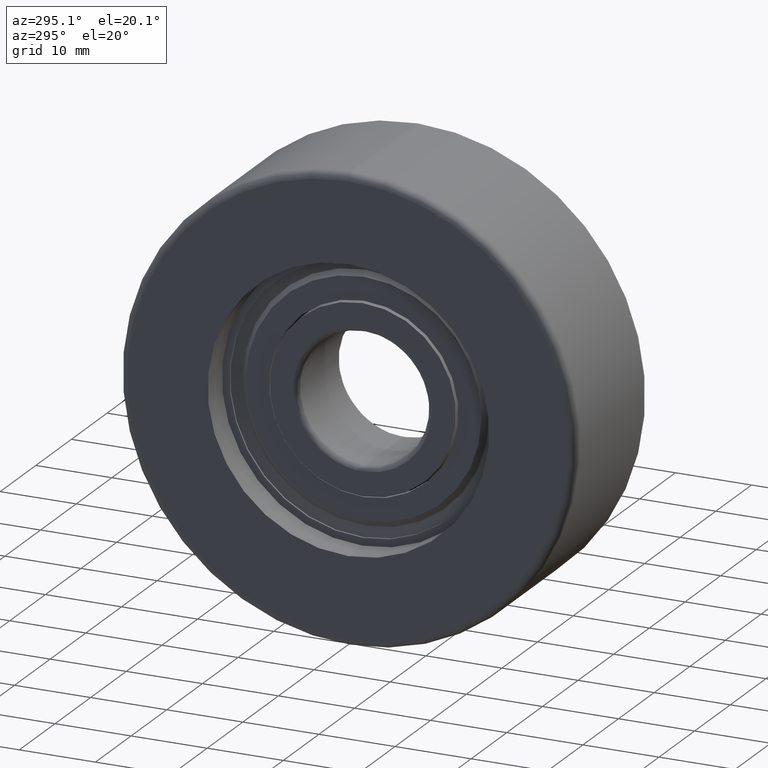
[diagram: clean part render]
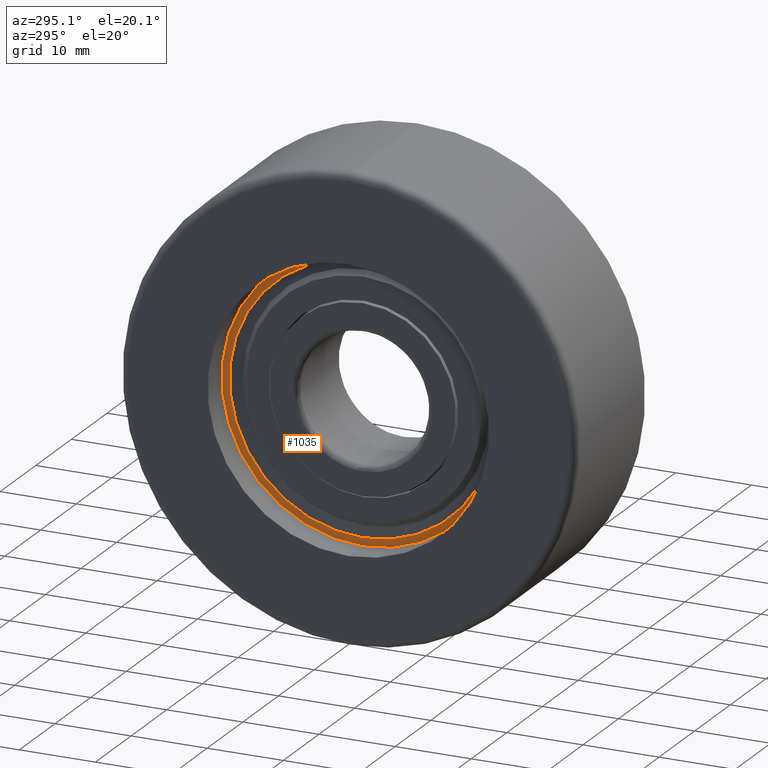
[diagram: same view with one face highlighted and labeled with its STEP entity id]
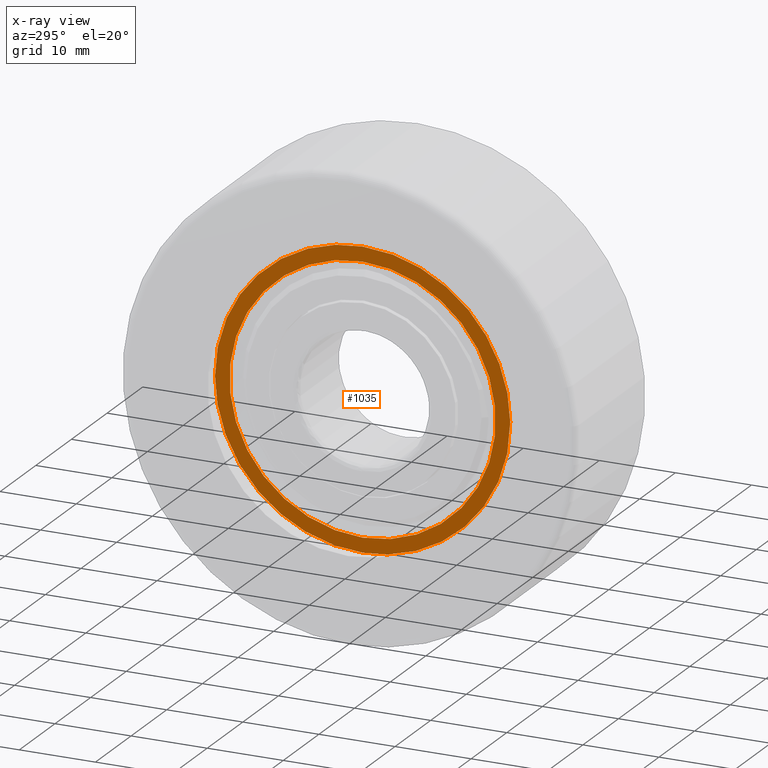
[diagram: x-ray of the same camera — body ghosted, the highlighted face saturated]
A machine part, auxiliary view. The second image highlights one B-rep face of the part: STEP entity #1035.
The next image is the same camera in x-ray: the body ghosted, the highlighted face saturated — about 0% of this face is hidden behind the body in this view.
In plain terms, the highlighted planar face has unit normal (-1, 0, 0).
Its self-contained STEP definition (entity closure, byte-faithful):
#42 = EDGE_CURVE ( 'NONE', #2623, #1947, #3529, .T. ) ;
#173 = AXIS2_PLACEMENT_3D ( 'NONE', #1027, #4878, #4031 ) ;
#248 = PLANE ( 'NONE',  #4082 ) ;
#491 = CARTESIAN_POINT ( 'NONE',  ( 0.0000000000000000000, 0.0000000000000000000, -17.48999999999999800 ) ) ;
#517 = CARTESIAN_POINT ( 'NONE',  ( 0.0000000000000000000, -38.79999999999999700, -19.40000000000000200 ) ) ;
#735 = VERTEX_POINT ( 'NONE', #491 ) ;
#800 =( BOUNDED_CURVE ( )  B_SPLINE_CURVE ( 3, ( #3608, #2237, #1879, #4471 ),
 .UNSPECIFIED., .F., .F. ) 
 B_SPLINE_CURVE_WITH_KNOTS ( ( 4, 4 ),
 ( 0.0000000000000000000, 1.000000000000000000 ),
 .UNSPECIFIED. ) 
 CURVE ( )  GEOMETRIC_REPRESENTATION_ITEM ( )  RATIONAL_B_SPLINE_CURVE ( ( 1.000000000000000000, 0.8047378541243649400, 0.8047378541243649400, 1.000000000000000000 ) ) 
 REPRESENTATION_ITEM ( '' )  );
#1027 = CARTESIAN_POINT ( 'NONE',  ( 0.0000000000000000000, 0.0000000000000000000, 0.0000000000000000000 ) ) ;
#1035 = ADVANCED_FACE ( 'NONE', ( #3689, #3565 ), #248, .T. ) ;
#1083 = EDGE_LOOP ( 'NONE', ( #5239, #2272 ) ) ;
#1167 = CARTESIAN_POINT ( 'NONE',  ( 0.0000000000000000000, 2.141907251708720700E-015, 17.48999999999999800 ) ) ;
#1447 = CIRCLE ( 'NONE', #1686, 17.48999999999999800 ) ;
#1460 = CARTESIAN_POINT ( 'NONE',  ( 0.0000000000000000000, 11.36425688996195200, -19.40000000000000200 ) ) ;
#1531 = DIRECTION ( 'NONE',  ( -6.123031769111890000E-017, -1.000000000000000000, 0.0000000000000000000 ) ) ;
#1657 = EDGE_CURVE ( 'NONE', #3530, #2623, #2167, .T. ) ;
#1686 = AXIS2_PLACEMENT_3D ( 'NONE', #3155, #2275, #3566 ) ;
#1879 = CARTESIAN_POINT ( 'NONE',  ( 0.0000000000000000000, 11.36425688996195800, 19.39999999999999900 ) ) ;
#1898 = CARTESIAN_POINT ( 'NONE',  ( 0.0000000000000000000, 19.39999999999999500, -11.36425688996195900 ) ) ;
#1947 = VERTEX_POINT ( 'NONE', #5554 ) ;
#2013 = CARTESIAN_POINT ( 'NONE',  ( -6.083740282381014800E-016, 2.813267654988965100E-015, 19.40000000000000200 ) ) ;
#2167 =( BOUNDED_CURVE ( )  B_SPLINE_CURVE ( 3, ( #2176, #4335, #517, #2245 ),
 .UNSPECIFIED., .F., .F. ) 
 B_SPLINE_CURVE_WITH_KNOTS ( ( 4, 4 ),
 ( 0.0000000000000000000, 1.000000000000000000 ),
 .UNSPECIFIED. ) 
 CURVE ( )  GEOMETRIC_REPRESENTATION_ITEM ( )  RATIONAL_B_SPLINE_CURVE ( ( 1.000000000000000000, 0.3333333333333333700, 0.3333333333333333700, 1.000000000000000000 ) ) 
 REPRESENTATION_ITEM ( '' )  );
#2176 = CARTESIAN_POINT ( 'NONE',  ( -6.083740282381014800E-016, 2.813267654988965100E-015, 19.40000000000000200 ) ) ;
#2237 = CARTESIAN_POINT ( 'NONE',  ( 0.0000000000000000000, 19.40000000000000600, 11.36425688996194900 ) ) ;
#2245 = CARTESIAN_POINT ( 'NONE',  ( -6.083740282381016800E-016, -1.387778780781445700E-015, -19.40000000000000200 ) ) ;
#2272 = ORIENTED_EDGE ( 'NONE', *, *, #4256, .T. ) ;
#2275 = DIRECTION ( 'NONE',  ( 1.000000000000000000, 0.0000000000000000000, 0.0000000000000000000 ) ) ;
#2623 = VERTEX_POINT ( 'NONE', #5502 ) ;
#2796 = CARTESIAN_POINT ( 'NONE',  ( -3.915418607825660000E-016, 18.44500000000000000, 0.0000000000000000000 ) ) ;
#3155 = CARTESIAN_POINT ( 'NONE',  ( 0.0000000000000000000, 0.0000000000000000000, 0.0000000000000000000 ) ) ;
#3450 = ORIENTED_EDGE ( 'NONE', *, *, #4691, .F. ) ;
#3529 =( BOUNDED_CURVE ( )  B_SPLINE_CURVE ( 3, ( #4967, #1460, #1898, #4488 ),
 .UNSPECIFIED., .F., .F. ) 
 B_SPLINE_CURVE_WITH_KNOTS ( ( 4, 4 ),
 ( 0.0000000000000000000, 1.000000000000000000 ),
 .UNSPECIFIED. ) 
 CURVE ( )  GEOMETRIC_REPRESENTATION_ITEM ( )  RATIONAL_B_SPLINE_CURVE ( ( 1.000000000000000000, 0.8047378541243650500, 0.8047378541243650500, 1.000000000000000000 ) ) 
 REPRESENTATION_ITEM ( '' )  );
#3530 = VERTEX_POINT ( 'NONE', #2013 ) ;
#3565 = FACE_OUTER_BOUND ( 'NONE', #3993, .T. ) ;
#3566 = DIRECTION ( 'NONE',  ( 0.0000000000000000000, 0.0000000000000000000, -1.000000000000000000 ) ) ;
#3608 = CARTESIAN_POINT ( 'NONE',  ( -1.665334536937737000E-016, 19.40000000000000200, -3.469446951953614200E-015 ) ) ;
#3689 = FACE_BOUND ( 'NONE', #1083, .T. ) ;
#3749 = EDGE_CURVE ( 'NONE', #735, #4461, #5216, .T. ) ;
#3993 = EDGE_LOOP ( 'NONE', ( #4151, #4524, #3450 ) ) ;
#4031 = DIRECTION ( 'NONE',  ( 0.0000000000000000000, 0.0000000000000000000, -1.000000000000000000 ) ) ;
#4077 = DIRECTION ( 'NONE',  ( -1.000000000000000000, 6.123031769111890000E-017, 0.0000000000000000000 ) ) ;
#4082 = AXIS2_PLACEMENT_3D ( 'NONE', #2796, #4077, #1531 ) ;
#4151 = ORIENTED_EDGE ( 'NONE', *, *, #42, .F. ) ;
#4256 = EDGE_CURVE ( 'NONE', #4461, #735, #1447, .T. ) ;
#4335 = CARTESIAN_POINT ( 'NONE',  ( 0.0000000000000000000, -38.79999999999999700, 19.40000000000000200 ) ) ;
#4461 = VERTEX_POINT ( 'NONE', #1167 ) ;
#4471 = CARTESIAN_POINT ( 'NONE',  ( -6.083740282381014800E-016, 2.813267654988965100E-015, 19.40000000000000200 ) ) ;
#4488 = CARTESIAN_POINT ( 'NONE',  ( -1.665334536937737000E-016, 19.40000000000000200, -3.469446951953614200E-015 ) ) ;
#4524 = ORIENTED_EDGE ( 'NONE', *, *, #1657, .F. ) ;
#4691 = EDGE_CURVE ( 'NONE', #1947, #3530, #800, .T. ) ;
#4878 = DIRECTION ( 'NONE',  ( 1.000000000000000000, 0.0000000000000000000, 0.0000000000000000000 ) ) ;
#4967 = CARTESIAN_POINT ( 'NONE',  ( -6.083740282381016800E-016, -1.387778780781445700E-015, -19.40000000000000200 ) ) ;
#5216 = CIRCLE ( 'NONE', #173, 17.48999999999999800 ) ;
#5239 = ORIENTED_EDGE ( 'NONE', *, *, #3749, .T. ) ;
#5502 = CARTESIAN_POINT ( 'NONE',  ( -6.083740282381016800E-016, -1.387778780781445700E-015, -19.40000000000000200 ) ) ;
#5554 = CARTESIAN_POINT ( 'NONE',  ( -1.665334536937737000E-016, 19.40000000000000200, -3.469446951953614200E-015 ) ) ;